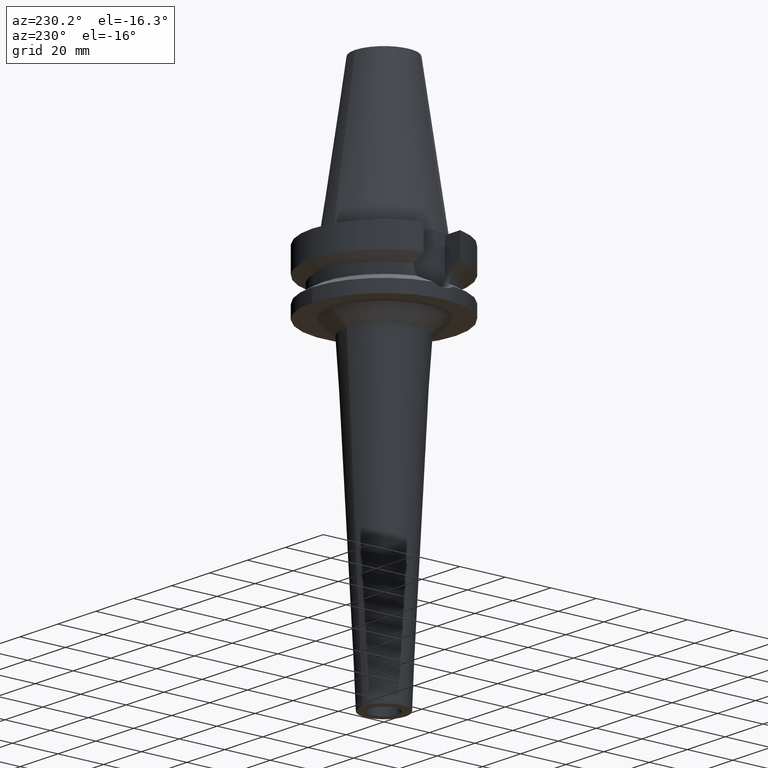
[diagram: clean part render]
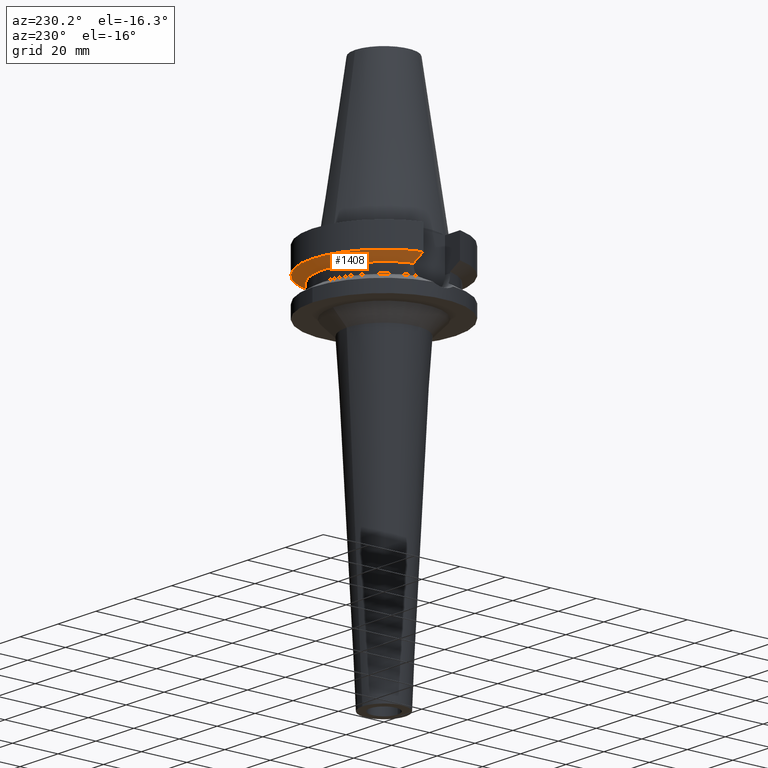
[diagram: same view with one face highlighted and labeled with its STEP entity id]
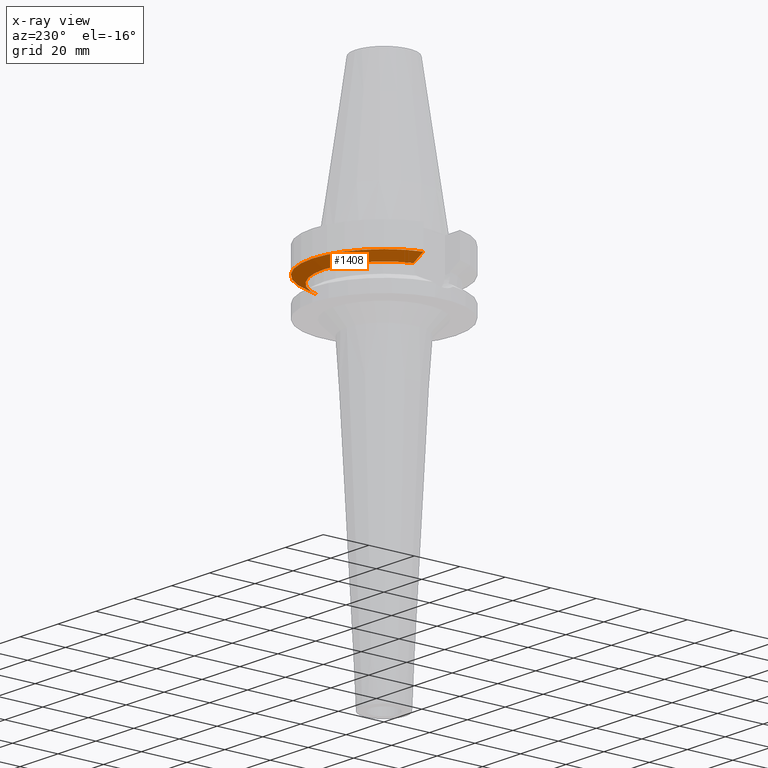
[diagram: x-ray of the same camera — body ghosted, the highlighted face saturated]
A machine part, auxiliary view. The second image highlights one B-rep face of the part: STEP entity #1408.
The next image is the same camera in x-ray: the body ghosted, the highlighted face saturated — about 0% of this face is hidden behind the body in this view.
In plain terms, the highlighted conical surface has half-angle 60 deg.
Its self-contained STEP definition (entity closure, byte-faithful):
#344=CARTESIAN_POINT('',(3.045402291366E1,8.049999277900E0,-1.156551215647E1));
#345=CARTESIAN_POINT('',(2.987645774282E1,8.049999277900E0,-1.188789690684E1));
#346=CARTESIAN_POINT('',(2.872091200702E1,8.049999725831E0,-1.253193852712E1));
#347=CARTESIAN_POINT('',(2.698538663939E1,8.050002042741E0,-1.349404339605E1));
#348=CARTESIAN_POINT('',(2.582730530082E1,8.049995416384E0,-1.413348340569E1));
#349=CARTESIAN_POINT('',(2.524772413102E1,8.049995416384E0,-1.445229202342E1));
#388=CARTESIAN_POINT('',(-2.524772216375E1,8.050001586471E0,-1.445224487658E1));
#389=CARTESIAN_POINT('',(-2.582727361540E1,8.050001586471E0,-1.413345268035E1));
#390=CARTESIAN_POINT('',(-2.698547393896E1,8.049999812109E0,-1.349419204145E1));
#391=CARTESIAN_POINT('',(-2.872100162077E1,8.049998277913E0,-1.253209181881E1));
#392=CARTESIAN_POINT('',(-2.987642831175E1,8.050004143464E0,-1.188786874955E1));
#393=CARTESIAN_POINT('',(-3.045402162753E1,8.050004143464E0,-1.156546833011E1));
#398=CARTESIAN_POINT('',(0.E0,1.065333950388E-14,-1.445225699861E1));
#399=DIRECTION('',(0.E0,0.E0,-1.E0));
#400=DIRECTION('',(-9.527442516822E-1,3.037735849057E-1,0.E0));
#401=AXIS2_PLACEMENT_3D('',#398,#399,#400);
#406=CARTESIAN_POINT('',(0.E0,1.065333950388E-14,-1.445225699861E1));
#407=DIRECTION('',(0.E0,0.E0,-1.E0));
#408=DIRECTION('',(0.E0,1.E0,0.E0));
#409=AXIS2_PLACEMENT_3D('',#406,#407,#408);
#414=CARTESIAN_POINT('',(0.E0,1.065333950388E-14,-1.156550565267E1));
#415=DIRECTION('',(0.E0,0.E0,1.E0));
#416=DIRECTION('',(9.667943721520E-1,2.555555555555E-1,0.E0));
#417=AXIS2_PLACEMENT_3D('',#414,#415,#416);
#422=CARTESIAN_POINT('',(0.E0,1.065333950388E-14,-1.156550565267E1));
#423=DIRECTION('',(0.E0,0.E0,1.E0));
#424=DIRECTION('',(0.E0,1.E0,0.E0));
#425=AXIS2_PLACEMENT_3D('',#422,#423,#424);
#1063=CARTESIAN_POINT('',(-2.524772216375E1,8.050001586471E0,
-1.445224487658E1));
#1064=VERTEX_POINT('',#1063);
#1065=CARTESIAN_POINT('',(2.524772413102E1,8.049995416384E0,-1.445229202342E1));
#1066=VERTEX_POINT('',#1065);
#1067=CARTESIAN_POINT('',(0.E0,2.65E1,-1.445225699861E1));
#1068=VERTEX_POINT('',#1067);
#1099=VERTEX_POINT('',#393);
#1104=VERTEX_POINT('',#344);
#1105=CARTESIAN_POINT('',(0.E0,3.15E1,-1.156550565267E1));
#1106=VERTEX_POINT('',#1105);
#1393=CARTESIAN_POINT('',(0.E0,1.065333950388E-14,-1.300888132564E1));
#1394=DIRECTION('',(0.E0,0.E0,1.E0));
#1395=DIRECTION('',(0.E0,1.E0,0.E0));
#1396=AXIS2_PLACEMENT_3D('',#1393,#1394,#1395);
#1397=CONICAL_SURFACE('',#1396,2.9E1,6.E1);
#1398=ORIENTED_EDGE('',*,*,#1382,.F.);
#1399=ORIENTED_EDGE('',*,*,#1371,.T.);
#1400=ORIENTED_EDGE('',*,*,#1369,.T.);
#1401=ORIENTED_EDGE('',*,*,#1348,.F.);
#1403=ORIENTED_EDGE('',*,*,#1402,.T.);
#1405=ORIENTED_EDGE('',*,*,#1404,.T.);
#1406=EDGE_LOOP('',(#1398,#1399,#1400,#1401,#1403,#1405));
#1407=FACE_OUTER_BOUND('',#1406,.F.);
#350=B_SPLINE_CURVE_WITH_KNOTS('',3,(#344,#345,#346,#347,#348,#349),
.UNSPECIFIED.,.F.,.F.,(4,1,1,4),(0.E0,3.333333333333E-1,6.666666666667E-1,1.E0),
.UNSPECIFIED.);
#394=B_SPLINE_CURVE_WITH_KNOTS('',3,(#388,#389,#390,#391,#392,#393),
.UNSPECIFIED.,.F.,.F.,(4,1,1,4),(0.E0,3.333333333333E-1,6.666666666667E-1,1.E0),
.UNSPECIFIED.);
#402=CIRCLE('',#401,2.65E1);
#410=CIRCLE('',#409,2.65E1);
#418=CIRCLE('',#417,3.15E1);
#426=CIRCLE('',#425,3.15E1);
#1348=EDGE_CURVE('',#1104,#1066,#350,.T.);
#1369=EDGE_CURVE('',#1068,#1066,#410,.T.);
#1371=EDGE_CURVE('',#1064,#1068,#402,.T.);
#1382=EDGE_CURVE('',#1064,#1099,#394,.T.);
#1402=EDGE_CURVE('',#1104,#1106,#418,.T.);
#1404=EDGE_CURVE('',#1106,#1099,#426,.T.);
#1408=ADVANCED_FACE('',(#1407),#1397,.T.);